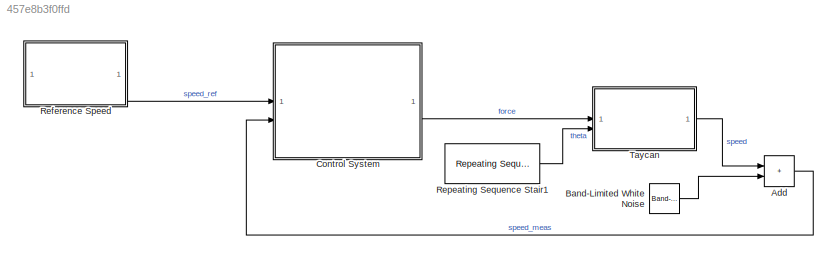
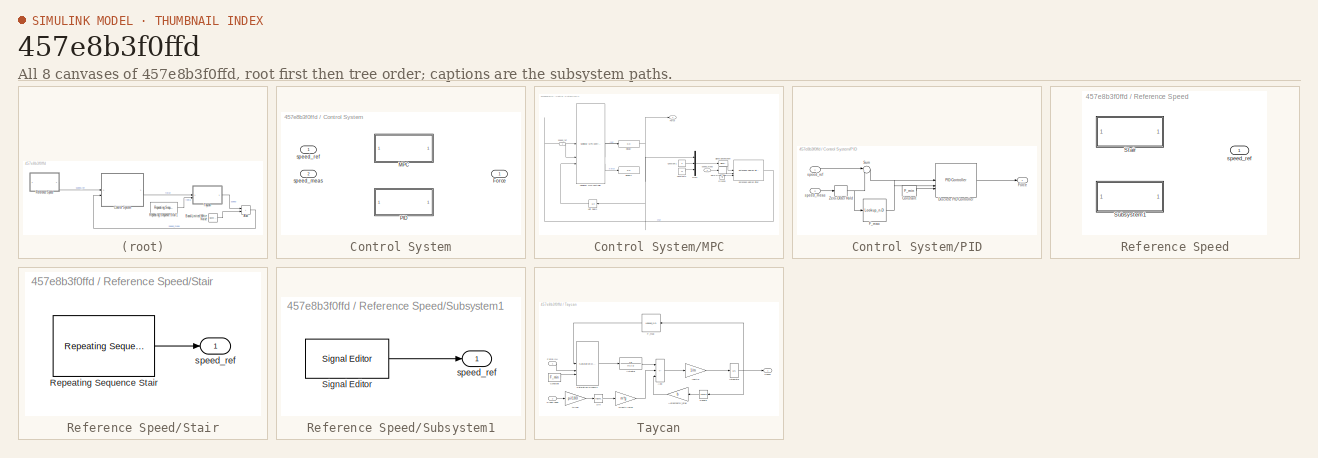
[diagram: thumbnail index - all 8 canvases of the model, root first then tree order]
MODEL slx_457e8b3f0ffd
KIND model
CONFIG AbsTol = auto
CONFIG EnableMultiTasking = off
CONFIG FixedStep = Tsim
CONFIG MaxStep = auto
CONFIG MinStep = auto
CONFIG RelTol = 1e-3
CONFIG SampleTimeConstraint = Unconstrained
CONFIG SolverName = FixedStepAuto
CONFIG StartTime = 0.0
CONFIG StopTime = t_Stop
BLOCK [Sum] Add
  IconShape = rectangular
BLOCK [Reference] Band-Limited White Noise  REF=simulink/Sources/Band-Limited
White Noise
  SourceBlock = simulink/Sources/Band-Limited\nWhite Noise
  SourceType = Band-Limited White Noise.
BLOCK [SubSystem] Control System
  Variant = on
BLOCK [Outport] Control System/Force
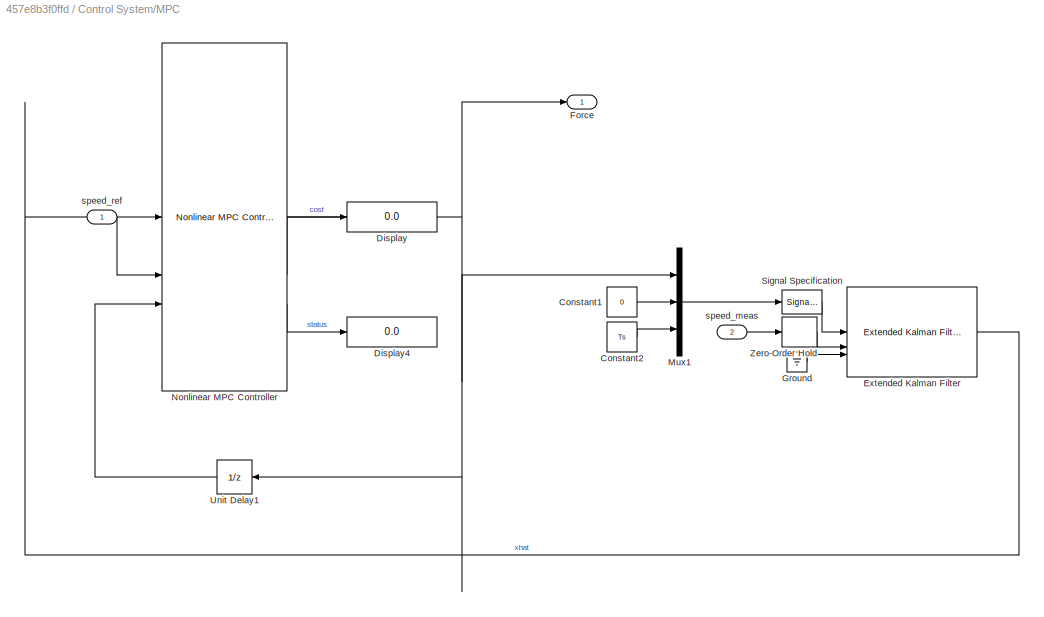
BLOCK [SubSystem] Control System/MPC
  VariantControl = controller == 1
BLOCK [Constant] Control System/MPC/Constant1
  Value = 0
BLOCK [Constant] Control System/MPC/Constant2
  Value = Ts
BLOCK [Display] Control System/MPC/Display
  Decimation = 1
BLOCK [Display] Control System/MPC/Display4
  Decimation = 1
BLOCK [Reference] Control System/MPC/Extended Kalman Filter  REF=sharedTrackingLibrary/Extended Kalman Filter
  LibrarySourceBlock = cstblocks/State Estimation/Extended Kalman Filter
  SourceBlock = sharedTrackingLibrary/Extended Kalman Filter
  SourceType = Extended Kalman Filter
BLOCK [Outport] Control System/MPC/Force
BLOCK [Ground] Control System/MPC/Ground
BLOCK [Mux] Control System/MPC/Mux1
  DisplayOption = bar
  Inputs = 3
BLOCK [Reference] Control System/MPC/Nonlinear MPC Controller  REF=mpclib/Nonlinear MPC Controller  (lib defined in mdl_ae329e0e0455)
  SourceBlock = mpclib/Nonlinear MPC Controller
  SourceType = NonlinearMPC
BLOCK [SignalSpecification] Control System/MPC/Signal Specification
  Dimensions = 3
BLOCK [UnitDelay] Control System/MPC/Unit Delay1
  HasFrameUpgradeWarning = on
  SampleTime = Ts
BLOCK [ZeroOrderHold] Control System/MPC/Zero-Order Hold
  SampleTime = Ts
BLOCK [Inport] Control System/MPC/speed_meas
  Port = 2
BLOCK [Inport] Control System/MPC/speed_ref
BLOCK [SubSystem] Control System/PID
  VariantControl = controller == 2
BLOCK [Constant] Control System/PID/Constant
  Value = F_min
BLOCK [Reference] Control System/PID/Discrete PID Controller  REF=slpidlib/PID Controller
  LibrarySourceBlock = simulink/Discrete/Discrete PID Controller
  SourceBlock = slpidlib/PID Controller
  SourceType = PID 1dof
BLOCK [Lookup_n-D] Control System/PID/F_max
  BreakpointsForDimension1 = v_to_F_max
  ExtrapMethod = Clip
  InputPortMap = u0
  InternalRulePriority = Speed
  NumberOfTableDimensions = 1
  RndMeth = Simplest
  Table = F_max
BLOCK [Outport] Control System/PID/Force
BLOCK [Sum] Control System/PID/Sum
  Inputs = |+-
BLOCK [ZeroOrderHold] Control System/PID/Zero-Order Hold
  SampleTime = Ts
BLOCK [Inport] Control System/PID/speed_meas
  Port = 2
BLOCK [Inport] Control System/PID/speed_ref
BLOCK [Inport] Control System/speed_meas
  Port = 2
BLOCK [Inport] Control System/speed_ref
BLOCK [SubSystem] Reference Speed
  Variant = on
BLOCK [SubSystem] Reference Speed/Stair
  VariantControl = ref == 1
BLOCK [Reference] Reference Speed/Stair/Repeating Sequence Stair  REF=simulink/Sources/Repeating
Sequence
Stair
  SourceBlock = simulink/Sources/Repeating\nSequence\nStair
  SourceType = Repeating Sequence Stair
BLOCK [Outport] Reference Speed/Stair/speed_ref
BLOCK [SubSystem] Reference Speed/Subsystem1
  VariantControl = ref == 2
BLOCK [Reference] Reference Speed/Subsystem1/Signal Editor  REF=SignalEditorBlockLib/Signal Editor
  LibrarySourceBlock = simulink/Sources/Signal Editor
  SourceBlock = SignalEditorBlockLib/Signal Editor
  SourceType = SignalEditor
  UserDataPersistent = on
BLOCK [Outport] Reference Speed/Subsystem1/speed_ref
BLOCK [Outport] Reference Speed/speed_ref
BLOCK [Reference] Repeating Sequence Stair1  REF=simulink/Sources/Repeating
Sequence
Stair
  SourceBlock = simulink/Sources/Repeating\nSequence\nStair
  SourceType = Repeating Sequence Stair
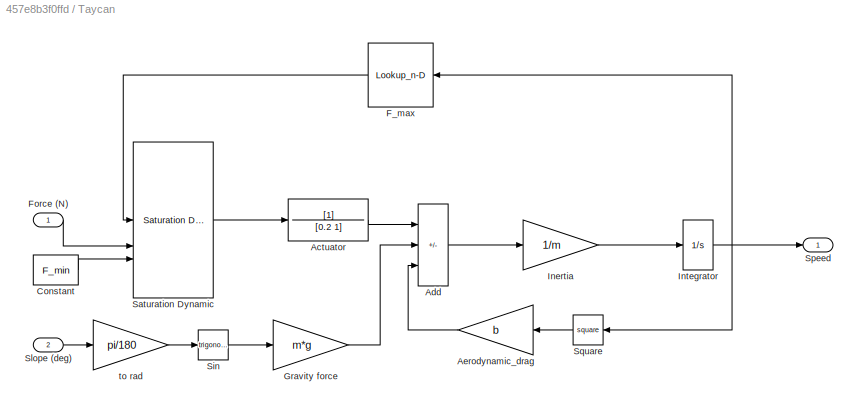
BLOCK [SubSystem] Taycan
BLOCK [TransferFcn] Taycan/Actuator
  Denominator = [0.2 1]
BLOCK [Sum] Taycan/Add
  IconShape = rectangular
  Inputs = +--
BLOCK [Gain] Taycan/Aerodynamic_drag
  Gain = b
BLOCK [Constant] Taycan/Constant
  Value = F_min
BLOCK [Lookup_n-D] Taycan/F_max
  BreakpointsForDimension1 = v_to_F_max
  ExtrapMethod = Clip
  InputPortMap = u0
  InternalRulePriority = Speed
  NumberOfTableDimensions = 1
  RndMeth = Simplest
  Table = F_max
BLOCK [Inport] Taycan/Force (N)
BLOCK [Gain] Taycan/Gravity force
  Gain = m*g
BLOCK [Gain] Taycan/Inertia
  Gain = 1/m
BLOCK [Integrator] Taycan/Integrator
BLOCK [Reference] Taycan/Saturation Dynamic  REF=simulink/Discontinuities/Saturation
Dynamic
  SourceBlock = simulink/Discontinuities/Saturation\nDynamic
  SourceType = Saturation Dynamic
BLOCK [Trigonometry] Taycan/Sin
BLOCK [Inport] Taycan/Slope (deg)
  Port = 2
BLOCK [Outport] Taycan/Speed
BLOCK [Math] Taycan/Square
  Operator = square
BLOCK [Gain] Taycan/to rad
  Gain = pi/180
LINE Add:1 -> Control System:2
LINE Band-Limited White Noise:1 -> Add:2
LINE Control System/MPC/Constant1:1 -> Control System/MPC/Mux1:2
LINE Control System/MPC/Constant2:1 -> Control System/MPC/Mux1:3
LINE Control System/MPC/Extended Kalman Filter:1 -> Control System/MPC/Nonlinear MPC Controller:1
LINE Control System/MPC/Ground:1 -> Control System/MPC/Extended Kalman Filter:3
LINE Control System/MPC/Mux1:1 -> Control System/MPC/Signal Specification:1
NET Control System/MPC/Nonlinear MPC Controller:1 -> Control System/MPC/Force:1, Control System/MPC/Mux1:1, Control System/MPC/Unit Delay1:1
LINE Control System/MPC/Nonlinear MPC Controller:2 -> Control System/MPC/Display:1
LINE Control System/MPC/Nonlinear MPC Controller:3 -> Control System/MPC/Display4:1
LINE Control System/MPC/Signal Specification:1 -> Control System/MPC/Extended Kalman Filter:1
LINE Control System/MPC/Unit Delay1:1 -> Control System/MPC/Nonlinear MPC Controller:3
LINE Control System/MPC/Zero-Order Hold:1 -> Control System/MPC/Extended Kalman Filter:2
LINE Control System/MPC/speed_meas:1 -> Control System/MPC/Zero-Order Hold:1
LINE Control System/MPC/speed_ref:1 -> Control System/MPC/Nonlinear MPC Controller:2
LINE Control System/PID/Constant:1 -> Control System/PID/Discrete PID Controller:3
LINE Control System/PID/Discrete PID Controller:1 -> Control System/PID/Force:1
LINE Control System/PID/F_max:1 -> Control System/PID/Discrete PID Controller:2
LINE Control System/PID/Sum:1 -> Control System/PID/Discrete PID Controller:1
NET Control System/PID/Zero-Order Hold:1 -> Control System/PID/F_max:1, Control System/PID/Sum:2
LINE Control System/PID/speed_meas:1 -> Control System/PID/Zero-Order Hold:1
LINE Control System/PID/speed_ref:1 -> Control System/PID/Sum:1
LINE Control System:1 -> Taycan:1
LINE Reference Speed/Stair/Repeating Sequence Stair:1 -> Reference Speed/Stair/speed_ref:1
LINE Reference Speed/Subsystem1/Signal Editor:1 -> Reference Speed/Subsystem1/speed_ref:1
LINE Reference Speed:1 -> Control System:1
LINE Repeating Sequence Stair1:1 -> Taycan:2
LINE Taycan/Actuator:1 -> Taycan/Add:1
LINE Taycan/Add:1 -> Taycan/Inertia:1
LINE Taycan/Aerodynamic_drag:1 -> Taycan/Add:3
LINE Taycan/Constant:1 -> Taycan/Saturation Dynamic:3
LINE Taycan/F_max:1 -> Taycan/Saturation Dynamic:1
LINE Taycan/Force (N):1 -> Taycan/Saturation Dynamic:2
LINE Taycan/Gravity force:1 -> Taycan/Add:2
LINE Taycan/Inertia:1 -> Taycan/Integrator:1
NET Taycan/Integrator:1 -> Taycan/F_max:1, Taycan/Speed:1, Taycan/Square:1
LINE Taycan/Saturation Dynamic:1 -> Taycan/Actuator:1
LINE Taycan/Sin:1 -> Taycan/Gravity force:1
LINE Taycan/Slope (deg):1 -> Taycan/to rad:1
LINE Taycan/Square:1 -> Taycan/Aerodynamic_drag:1
LINE Taycan/to rad:1 -> Taycan/Sin:1
LINE Taycan:1 -> Add:1
note: NET lines group one-source signal fan-out (src -> all destinations, sorted); 1:1 wires keep LINE
